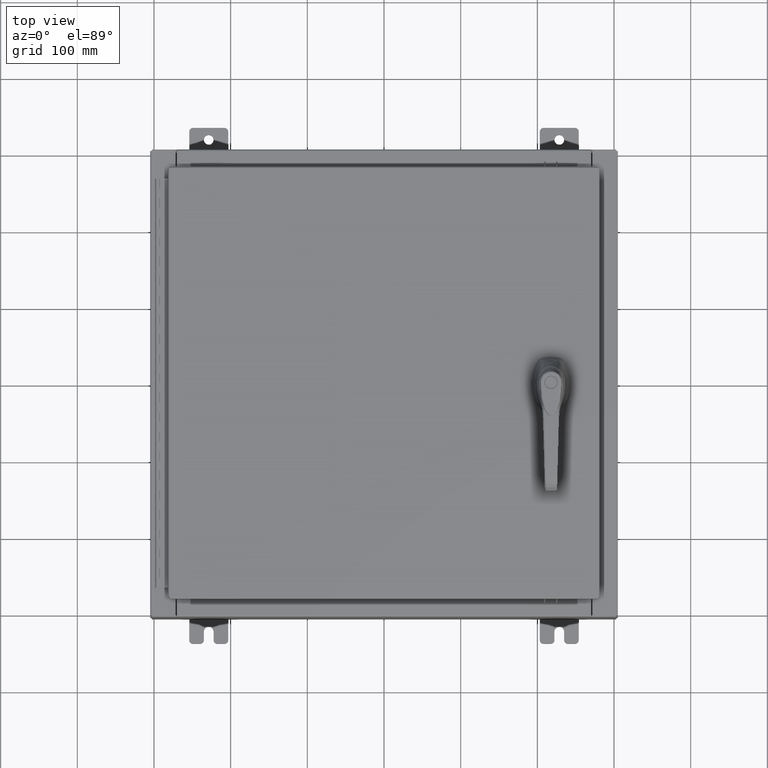
[diagram: clean part render]
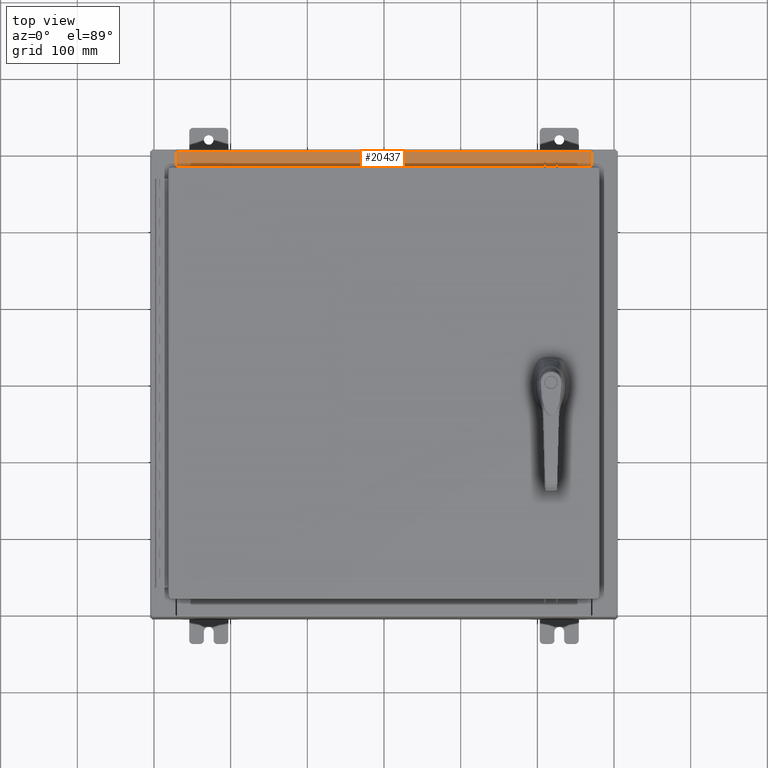
[diagram: same view with one face highlighted and labeled with its STEP entity id]
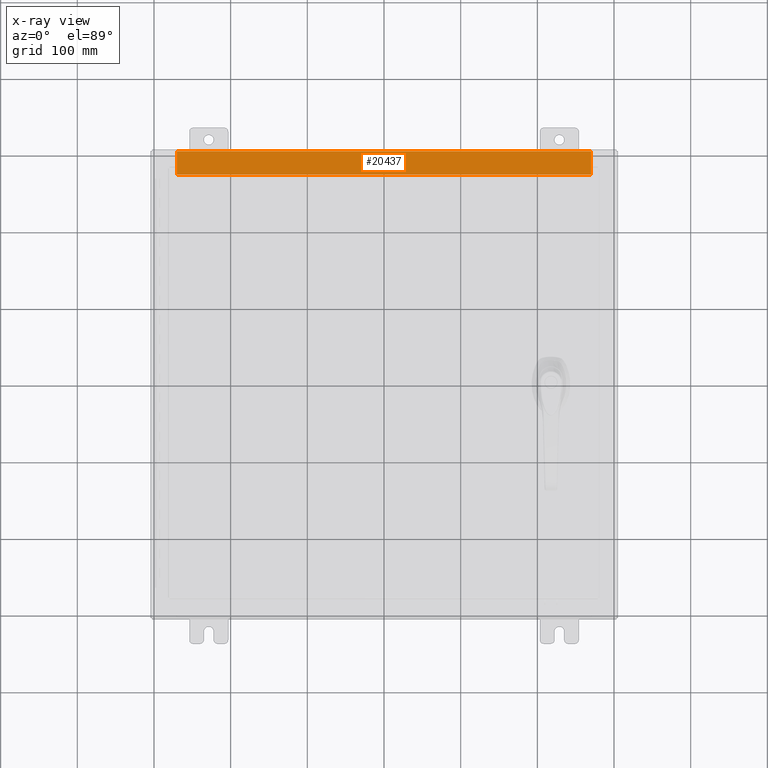
[diagram: x-ray of the same camera — body ghosted, the highlighted face saturated]
A machine part, top view. The second image highlights one B-rep face of the part: STEP entity #20437.
The next image is the same camera in x-ray: the body ghosted, the highlighted face saturated — about 0% of this face is hidden behind the body in this view.
In plain terms, the highlighted planar face has unit normal (0, 0, 1).
Its self-contained STEP definition (entity closure, byte-faithful):
#2584 = DIRECTION ( 'NONE',  ( -1.000000000000000000, 0.0000000000000000000, 0.0000000000000000000 ) ) ;
#9339 = ORIENTED_EDGE ( 'NONE', *, *, #23624, .F. ) ;
#11675 = EDGE_CURVE ( 'NONE', #72085, #37815, #84752, .T. ) ;
#12085 = DIRECTION ( 'NONE',  ( -1.000000000000000000, 2.568202152506545800E-017, -9.159187855938968600E-032 ) ) ;
#15024 = EDGE_CURVE ( 'NONE', #89883, #37846, #68831, .T. ) ;
#15781 = CARTESIAN_POINT ( 'NONE',  ( -10.63720000000000200, -1.287299999999999200, 4.000000000000004400 ) ) ;
#20437 = ADVANCED_FACE ( 'NONE', ( #75206 ), #64324, .T. ) ;
#20644 = CARTESIAN_POINT ( 'NONE',  ( -10.63720000000000200, -0.07469999999999973900, 4.000000000000000000 ) ) ;
#20987 = CARTESIAN_POINT ( 'NONE',  ( -10.63720000000000200, -0.08770000000000000000, 4.000000000000000000 ) ) ;
#23624 = EDGE_CURVE ( 'NONE', #37815, #89883, #96841, .T. ) ;
#32498 = LINE ( 'NONE', #73382, #99666 ) ;
#33562 = CARTESIAN_POINT ( 'NONE',  ( 10.63720000000000400, -0.08769999999999965300, 4.000000000000000000 ) ) ;
#37815 = VERTEX_POINT ( 'NONE', #99583 ) ;
#37846 = VERTEX_POINT ( 'NONE', #20987 ) ;
#38119 = VECTOR ( 'NONE', #87990, 39.37007874015748100 ) ;
#40027 = ORIENTED_EDGE ( 'NONE', *, *, #15024, .F. ) ;
#43874 = CARTESIAN_POINT ( 'NONE',  ( 10.63720000000000200, -1.300299999999999800, 4.000000000000004400 ) ) ;
#47829 = CARTESIAN_POINT ( 'NONE',  ( 0.0000000000000000000, 1.425992975200418500E-014, 4.000000000000000000 ) ) ;
#56613 = DIRECTION ( 'NONE',  ( 0.0000000000000000000, -1.000000000000000000, 3.566381192773190000E-015 ) ) ;
#60609 = ORIENTED_EDGE ( 'NONE', *, *, #101678, .T. ) ;
#61245 = ORIENTED_EDGE ( 'NONE', *, *, #11675, .F. ) ;
#64324 = PLANE ( 'NONE',  #88354 ) ;
#64326 = DIRECTION ( 'NONE',  ( -0.0000000000000000000, 1.000000000000000000, -3.566381192773190000E-015 ) ) ;
#68831 = LINE ( 'NONE', #20644, #89455 ) ;
#72085 = VERTEX_POINT ( 'NONE', #33562 ) ;
#73382 = CARTESIAN_POINT ( 'NONE',  ( -2.252313287748606700E-018, -0.08770000000000000000, 4.000000000000000900 ) ) ;
#73455 = VECTOR ( 'NONE', #2584, 39.37007874015748100 ) ;
#75206 = FACE_OUTER_BOUND ( 'NONE', #103386, .T. ) ;
#84752 = LINE ( 'NONE', #43874, #38119 ) ;
#87990 = DIRECTION ( 'NONE',  ( -0.0000000000000000000, -1.000000000000000000, 3.566381192773190000E-015 ) ) ;
#88354 = AXIS2_PLACEMENT_3D ( 'NONE', #47829, #109154, #56613 ) ;
#89455 = VECTOR ( 'NONE', #64326, 39.37007874015748100 ) ;
#89883 = VERTEX_POINT ( 'NONE', #15781 ) ;
#96841 = LINE ( 'NONE', #107599, #73455 ) ;
#99583 = CARTESIAN_POINT ( 'NONE',  ( 10.63720000000000200, -1.287299999999999900, 4.000000000000004400 ) ) ;
#99666 = VECTOR ( 'NONE', #12085, 39.37007874015748100 ) ;
#101678 = EDGE_CURVE ( 'NONE', #72085, #37846, #32498, .T. ) ;
#103386 = EDGE_LOOP ( 'NONE', ( #40027, #9339, #61245, #60609 ) ) ;
#107599 = CARTESIAN_POINT ( 'NONE',  ( 10.63720000000000400, -1.287299999999999900, 4.000000000000003600 ) ) ;
#109154 = DIRECTION ( 'NONE',  ( 0.0000000000000000000, 3.566381192773190000E-015, 1.000000000000000000 ) ) ;